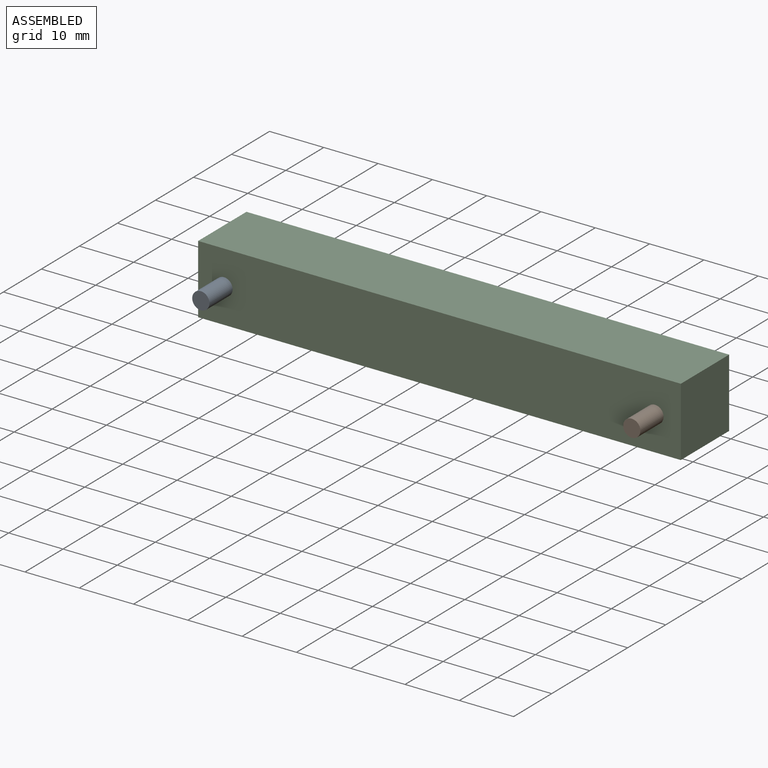
[diagram: assembled view]
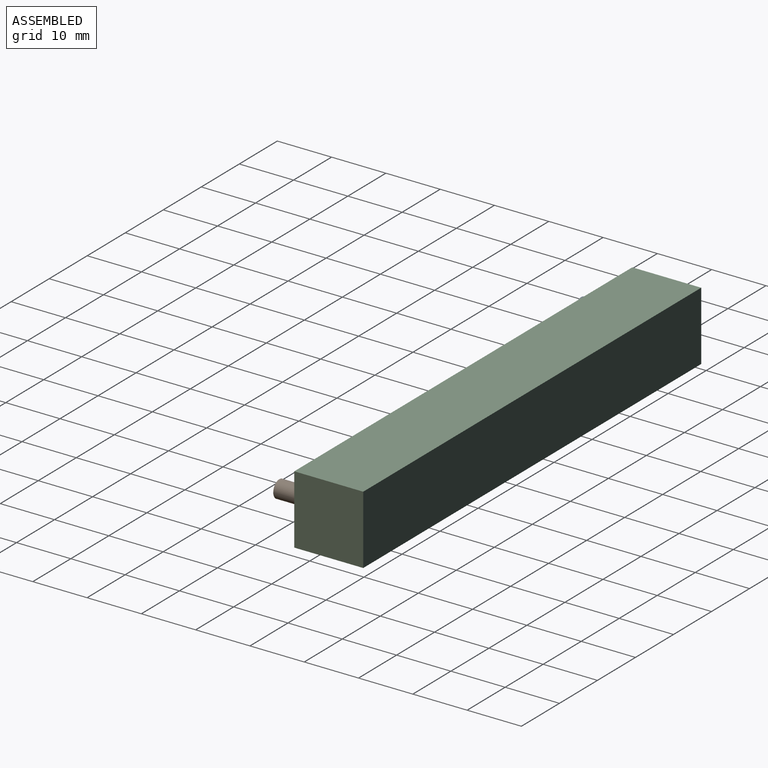
[diagram: assembled view, second angle]
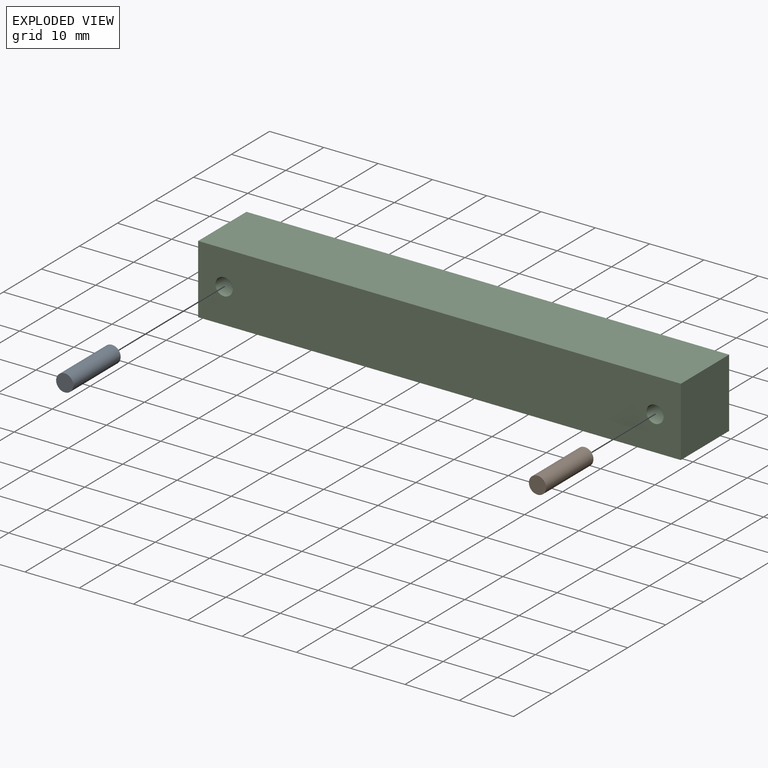
[diagram: exploded view]
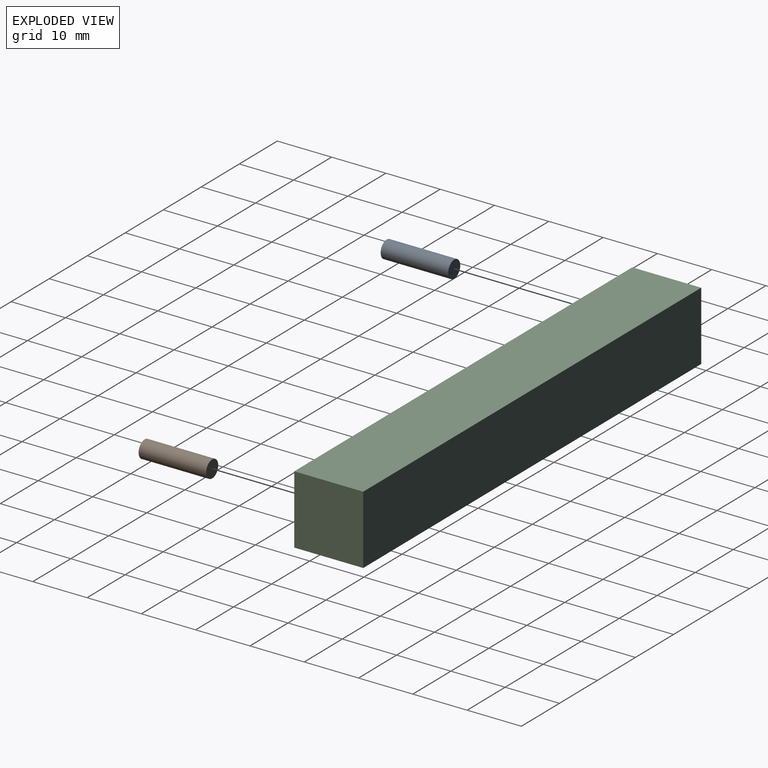
[diagram: exploded view, second angle]
ASSEMBLY  parts=3 mates=2
PART A: 3 faces, bbox 3.2x12.4x3.2 mm
  f0: cylinder r=1.59mm len=12.45mm, axis (0,1,0), area 124.1mm2, adj f1,f2
  f1: plane 3.18x3.18mm, normal (0,-1,0), area 7.9mm2, adj f0
  f2: plane 3.18x3.18mm, normal (0,1,0), area 7.9mm2, adj f0
PART B: same geometry as A
PART C: 10 faces, bbox 88.9x12.7x12.7 mm
  f0: plane 88.9x12.7mm, normal (0,-1,0), area 1113.2mm2, adj f1,f2,f3,f4,f6,f8
  f1: plane 12.7x12.7mm, normal (-1,0,0), area 161.3mm2, adj f0,f2,f4,f5
  f2: plane 88.9x12.7mm, normal (0,0,-1), area 1129mm2, adj f0,f1,f3,f5
  f3: plane 12.7x12.7mm, normal (1,0,0), area 161.3mm2, adj f0,f2,f4,f5
  f4: plane 88.9x12.7mm, normal (0,0,1), area 1129mm2, adj f0,f1,f3,f5
  f5: plane 88.9x12.7mm, normal (0,1,0), area 1129mm2, adj f1,f2,f3,f4
  f6: cylinder r=1.59mm len=6.35mm, axis (0,-1,0), area 63.3mm2, adj f0,f7
  f7: plane 3.18x3.18mm, normal (0,-1,0), area 7.9mm2, adj f6
  f8: cylinder r=1.59mm len=6.35mm, axis (0,-1,0), area 63.3mm2, adj f0,f9
  f9: plane 3.18x3.18mm, normal (0,-1,0), area 7.9mm2, adj f8
PLACE A rot(axis=(1,0,0),180deg) t=(-84.29,-19.04,-12.37)mm
PLACE B rot(axis=(1,0,0),180deg) t=(-4.92,-19.04,-12.37)mm
PLACE C t=(-0.16,-0.25,-6.02)mm
MATE fastened B.f0 <-> C.f6  axis (0,1,0) through (-4.92,-6.6,-12.37)mm
MATE fastened A.f0 <-> C.f8  axis (0,1,0) through (-84.29,-6.6,-12.37)mm
